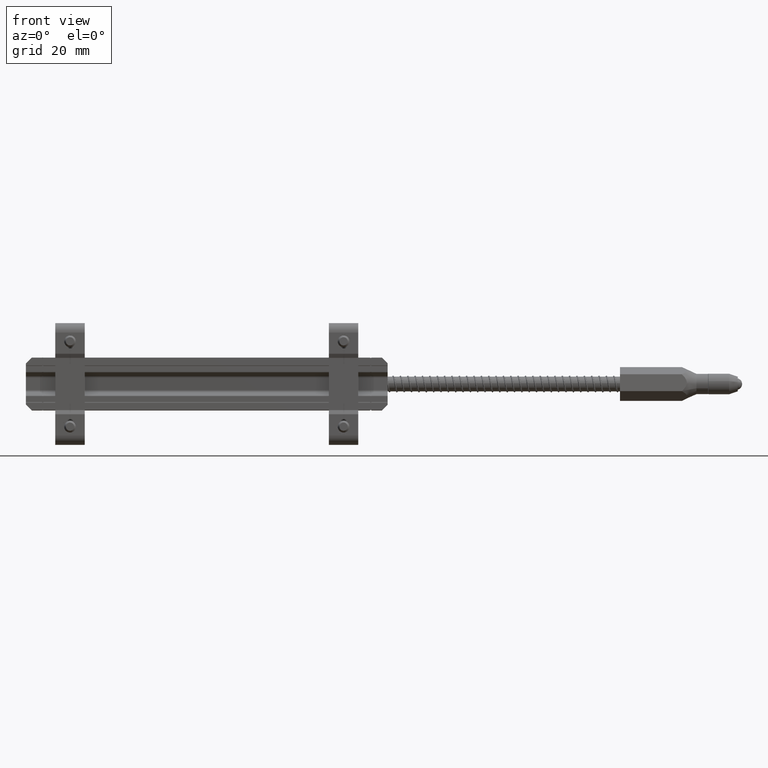
[diagram: clean part render]
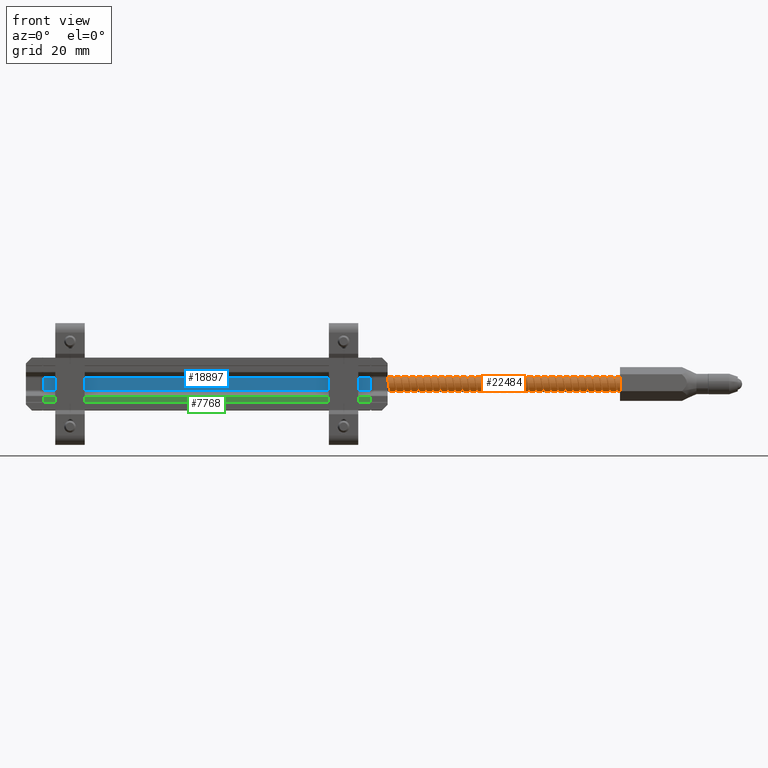
[diagram: same view with three faces highlighted in distinct colors, each labeled with its STEP entity id]
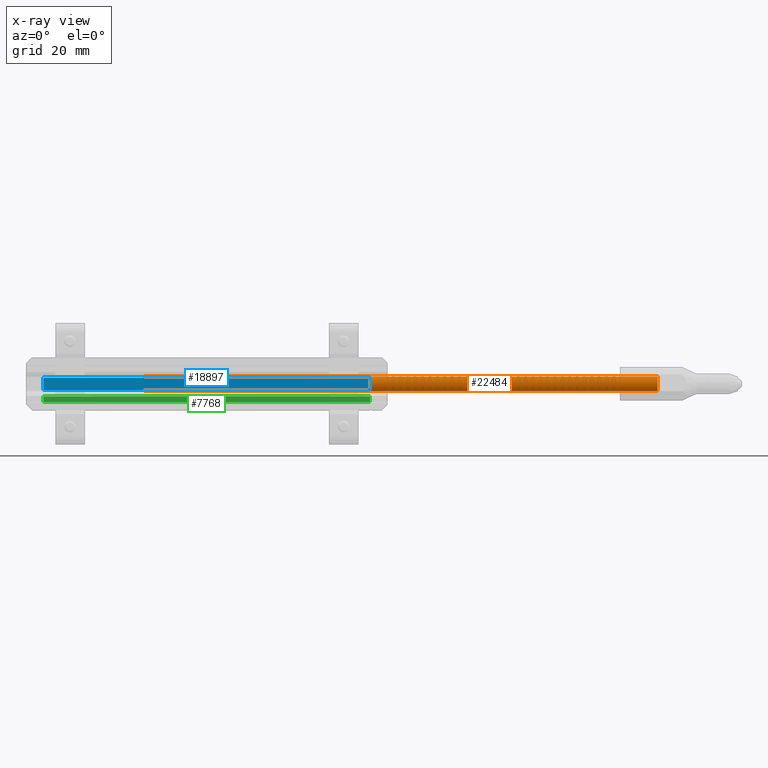
[diagram: x-ray of the same camera — body ghosted, the three highlighted faces saturated]
A machine part, front view with three faces highlighted in distinct colors.
The next image is the same camera in x-ray (body ghosted, the three faces saturated) — at least one of them is partly hidden behind the body in this view.
Their STEP definitions:

[orange] entity #22484 — the highlighted cylindrical surface (bore or boss wall) has radius 2.5 mm, axis along (-1, -0, -0).
#1919 = ORIENTED_EDGE ( 'NONE', *, *, #4448, .T. ) ;
#2765 = DIRECTION ( 'NONE',  ( 0.000000000000000000, -0.9950281099067904700, 0.09959448024524254761 ) ) ;
#4448 = EDGE_CURVE ( 'NONE', #30792, #30792, #17238, .T. ) ;
#5765 = CARTESIAN_POINT ( 'NONE',  ( 3.691675623100581394, 0.09793583758925132610, -0.009802606323350313705 ) ) ;
#6343 = FACE_OUTER_BOUND ( 'NONE', #30260, .T. ) ;
#7699 = AXIS2_PLACEMENT_3D ( 'NONE', #16298, #10498, #2765 ) ;
#8720 = AXIS2_PLACEMENT_3D ( 'NONE', #9784, #22347, #16727 ) ;
#9784 = CARTESIAN_POINT ( 'NONE',  ( 3.510122068434257780, 2.731847997425039255E-16, 3.286239319082167489E-16 ) ) ;
#10163 = CARTESIAN_POINT ( 'NONE',  ( 3.691675623100581394, 2.731847997719578716E-16, 3.329658649032751217E-16 ) ) ;
#10498 = DIRECTION ( 'NONE',  ( 1.000000000000000000, 1.622330538777590061E-25, 2.391543918288124704E-17 ) ) ;
#11476 = AXIS2_PLACEMENT_3D ( 'NONE', #10163, #15616, #15266 ) ;
#11618 = CYLINDRICAL_SURFACE ( 'NONE', #8720, 0.09842519685039372024 ) ;
#12020 = ORIENTED_EDGE ( 'NONE', *, *, #31224, .T. ) ;
#15266 = DIRECTION ( 'NONE',  ( 0.000000000000000000, 0.9950281099067904700, -0.09959448024524254761 ) ) ;
#15616 = DIRECTION ( 'NONE',  ( -1.000000000000000000, -1.622330538777590061E-25, -2.391543918288124704E-17 ) ) ;
#16298 = CARTESIAN_POINT ( 'NONE',  ( -3.178088156487001825, 2.731847986574551847E-16, 1.686724470317878460E-16 ) ) ;
#16727 = DIRECTION ( 'NONE',  ( 0.000000000000000000, -0.9950281099067904700, 0.09959448024524254761 ) ) ;
#17238 = CIRCLE ( 'NONE', #7699, 0.09842519685039372024 ) ;
#17802 = EDGE_LOOP ( 'NONE', ( #1919 ) ) ;
#18086 = CARTESIAN_POINT ( 'NONE',  ( -3.178088156487001825, -0.09793583758925078486, 0.009802606323350815040 ) ) ;
#22347 = DIRECTION ( 'NONE',  ( -1.000000000000000000, -1.622330538777590061E-25, -2.391543918288124704E-17 ) ) ;
#22484 = ADVANCED_FACE ( 'NONE', ( #6343, #31281 ), #11618, .T. ) ;
#24933 = VERTEX_POINT ( 'NONE', #5765 ) ;
#26640 = CIRCLE ( 'NONE', #11476, 0.09842519685039372024 ) ;
#30260 = EDGE_LOOP ( 'NONE', ( #12020 ) ) ;
#30792 = VERTEX_POINT ( 'NONE', #18086 ) ;
#31224 = EDGE_CURVE ( 'NONE', #24933, #24933, #26640, .T. ) ;
#31281 = FACE_OUTER_BOUND ( 'NONE', #17802, .T. ) ;

[blue] entity #18897 — the highlighted planar face has unit normal (-0, -1, -0).
#292 = PLANE ( 'NONE',  #33754 ) ;
#637 = FACE_OUTER_BOUND ( 'NONE', #29371, .T. ) ;
#2911 = VERTEX_POINT ( 'NONE', #21196 ) ;
#3531 = VECTOR ( 'NONE', #10772, 39.37007874015748143 ) ;
#3624 = CARTESIAN_POINT ( 'NONE',  ( -0.1574803149606300579, -0.2362204724409448231, 0.08211757629921294377 ) ) ;
#3783 = LINE ( 'NONE', #14493, #26068 ) ;
#3869 = DIRECTION ( 'NONE',  ( 2.391543914929064682E-17, 1.201068257667177748E-16, -1.000000000000000000 ) ) ;
#4576 = ORIENTED_EDGE ( 'NONE', *, *, #20642, .F. ) ;
#8476 = VECTOR ( 'NONE', #27553, 39.37007874015748143 ) ;
#8905 = DIRECTION ( 'NONE',  ( -1.000000000000000000, 1.033975794397574105E-25, -2.391543914929064682E-17 ) ) ;
#9707 = ORIENTED_EDGE ( 'NONE', *, *, #30914, .T. ) ;
#10641 = CARTESIAN_POINT ( 'NONE',  ( -0.1574803149606300579, -0.2362204723614631796, 0.3543307086614176926 ) ) ;
#10772 = DIRECTION ( 'NONE',  ( -1.000000000000000000, 1.033975794397574105E-25, -2.391543914929064682E-17 ) ) ;
#10824 = ORIENTED_EDGE ( 'NONE', *, *, #18855, .T. ) ;
#11021 = VERTEX_POINT ( 'NONE', #32549 ) ;
#11177 = LINE ( 'NONE', #27022, #8476 ) ;
#12281 = VERTEX_POINT ( 'NONE', #33359 ) ;
#14493 = CARTESIAN_POINT ( 'NONE',  ( -4.527559055118110187, -0.2362204723614631796, 0.3543307086614175816 ) ) ;
#16109 = DIRECTION ( 'NONE',  ( 2.391543914929064682E-17, 1.201068257667177748E-16, -1.000000000000000000 ) ) ;
#16589 = LINE ( 'NONE', #32095, #3531 ) ;
#18855 = EDGE_CURVE ( 'NONE', #21928, #11021, #11177, .T. ) ;
#18897 = ADVANCED_FACE ( 'NONE', ( #637 ), #292, .T. ) ;
#19628 = DIRECTION ( 'NONE',  ( -1.033975765673499272E-25, -1.000000000000000000, -1.201068257667177748E-16 ) ) ;
#20642 = EDGE_CURVE ( 'NONE', #2911, #11021, #32491, .T. ) ;
#21196 = CARTESIAN_POINT ( 'NONE',  ( -0.1574803149606300579, -0.2362204724012040846, 0.08211757629921294377 ) ) ;
#21227 = ORIENTED_EDGE ( 'NONE', *, *, #27383, .T. ) ;
#21928 = VERTEX_POINT ( 'NONE', #31002 ) ;
#26068 = VECTOR ( 'NONE', #3869, 39.37007874015748143 ) ;
#27022 = CARTESIAN_POINT ( 'NONE',  ( -0.1574803149606300579, -0.2362204724409448231, -0.08211757629921219437 ) ) ;
#27383 = EDGE_CURVE ( 'NONE', #2911, #12281, #16589, .T. ) ;
#27553 = DIRECTION ( 'NONE',  ( 1.000000000000000000, -1.033975794397574105E-25, 2.391543914929064682E-17 ) ) ;
#29232 = VECTOR ( 'NONE', #16109, 39.37007874015748143 ) ;
#29371 = EDGE_LOOP ( 'NONE', ( #4576, #21227, #9707, #10824 ) ) ;
#30914 = EDGE_CURVE ( 'NONE', #12281, #21928, #3783, .T. ) ;
#31002 = CARTESIAN_POINT ( 'NONE',  ( -4.527559055118110187, -0.2362204724012040846, -0.08211757629921233315 ) ) ;
#32095 = CARTESIAN_POINT ( 'NONE',  ( -0.1574803149606300579, -0.2362204724409448231, 0.08211757629921294377 ) ) ;
#32491 = LINE ( 'NONE', #10641, #29232 ) ;
#32549 = CARTESIAN_POINT ( 'NONE',  ( -0.1574803149606300579, -0.2362204724012040846, -0.08211757629921219437 ) ) ;
#33359 = CARTESIAN_POINT ( 'NONE',  ( -4.527559055118110187, -0.2362204724012040846, 0.08211757629921284662 ) ) ;
#33754 = AXIS2_PLACEMENT_3D ( 'NONE', #3624, #19628, #8905 ) ;

[green] entity #7768 — the highlighted planar face has unit normal (0, 1, 0).
#4 = DIRECTION ( 'NONE',  ( 1.000000000000000000, -1.033975794397574105E-25, 2.391543914929064682E-17 ) ) ;
#202 = LINE ( 'NONE', #19017, #12114 ) ;
#1622 = CARTESIAN_POINT ( 'NONE',  ( -0.1574803149606300579, -0.2952755905511810219, -0.1656341252362201200 ) ) ;
#2127 = FACE_OUTER_BOUND ( 'NONE', #19080, .T. ) ;
#2995 = ORIENTED_EDGE ( 'NONE', *, *, #8509, .T. ) ;
#3467 = CARTESIAN_POINT ( 'NONE',  ( -0.1574803149606300579, -0.2952755906080846149, -0.2440944881189857918 ) ) ;
#7089 = VERTEX_POINT ( 'NONE', #33205 ) ;
#7455 = CARTESIAN_POINT ( 'NONE',  ( -0.1574803149606300579, -0.2952755906536075337, 0.3543307086614176926 ) ) ;
#7768 = ADVANCED_FACE ( 'NONE', ( #2127 ), #32393, .F. ) ;
#8509 = EDGE_CURVE ( 'NONE', #32883, #7089, #202, .T. ) ;
#8638 = CARTESIAN_POINT ( 'NONE',  ( -4.527559055118110187, -0.2952755906023942223, -0.1656341252362202587 ) ) ;
#9205 = EDGE_CURVE ( 'NONE', #12087, #7089, #33187, .T. ) ;
#9291 = VECTOR ( 'NONE', #18177, 39.37007874015748143 ) ;
#9372 = LINE ( 'NONE', #1622, #11474 ) ;
#11474 = VECTOR ( 'NONE', #25197, 39.37007874015748143 ) ;
#12087 = VERTEX_POINT ( 'NONE', #3467 ) ;
#12114 = VECTOR ( 'NONE', #26404, 39.37007874015748143 ) ;
#12210 = CARTESIAN_POINT ( 'NONE',  ( -0.1574803149606300579, -0.2952755905511810219, -0.2440944880839897302 ) ) ;
#13077 = ORIENTED_EDGE ( 'NONE', *, *, #13646, .F. ) ;
#13646 = EDGE_CURVE ( 'NONE', #32883, #16753, #9372, .T. ) ;
#15655 = DIRECTION ( 'NONE',  ( 1.033975765673499272E-25, 1.000000000000000000, 1.201068257667177748E-16 ) ) ;
#16753 = VERTEX_POINT ( 'NONE', #25971 ) ;
#18177 = DIRECTION ( 'NONE',  ( 2.391543914929064682E-17, 1.201068257667177748E-16, -1.000000000000000000 ) ) ;
#18818 = CARTESIAN_POINT ( 'NONE',  ( -0.1574803149606300579, -0.2952755905511810219, -0.1656341252362201200 ) ) ;
#19017 = CARTESIAN_POINT ( 'NONE',  ( -4.527559055118110187, -0.2952755906536075337, 0.3543307086614175816 ) ) ;
#19080 = EDGE_LOOP ( 'NONE', ( #2995, #28069, #32921, #13077 ) ) ;
#19950 = AXIS2_PLACEMENT_3D ( 'NONE', #18818, #15655, #4 ) ;
#23421 = EDGE_CURVE ( 'NONE', #16753, #12087, #31575, .T. ) ;
#25197 = DIRECTION ( 'NONE',  ( 1.000000000000000000, -1.033975794397574105E-25, 2.391543914929064682E-17 ) ) ;
#25971 = CARTESIAN_POINT ( 'NONE',  ( -0.1574803149606300579, -0.2952755906023942223, -0.1656341252362201200 ) ) ;
#26404 = DIRECTION ( 'NONE',  ( 2.391543914929064682E-17, 1.201068257667177748E-16, -1.000000000000000000 ) ) ;
#28069 = ORIENTED_EDGE ( 'NONE', *, *, #9205, .F. ) ;
#31575 = LINE ( 'NONE', #7455, #9291 ) ;
#32393 = PLANE ( 'NONE',  #19950 ) ;
#32883 = VERTEX_POINT ( 'NONE', #8638 ) ;
#32921 = ORIENTED_EDGE ( 'NONE', *, *, #23421, .F. ) ;
#33187 = LINE ( 'NONE', #12210, #33348 ) ;
#33205 = CARTESIAN_POINT ( 'NONE',  ( -4.527559055118110187, -0.2952755906080846149, -0.2440944881189859306 ) ) ;
#33348 = VECTOR ( 'NONE', #33532, 39.37007874015748143 ) ;
#33532 = DIRECTION ( 'NONE',  ( -1.000000000000000000, 1.033975794397574105E-25, -2.391543914929064682E-17 ) ) ;